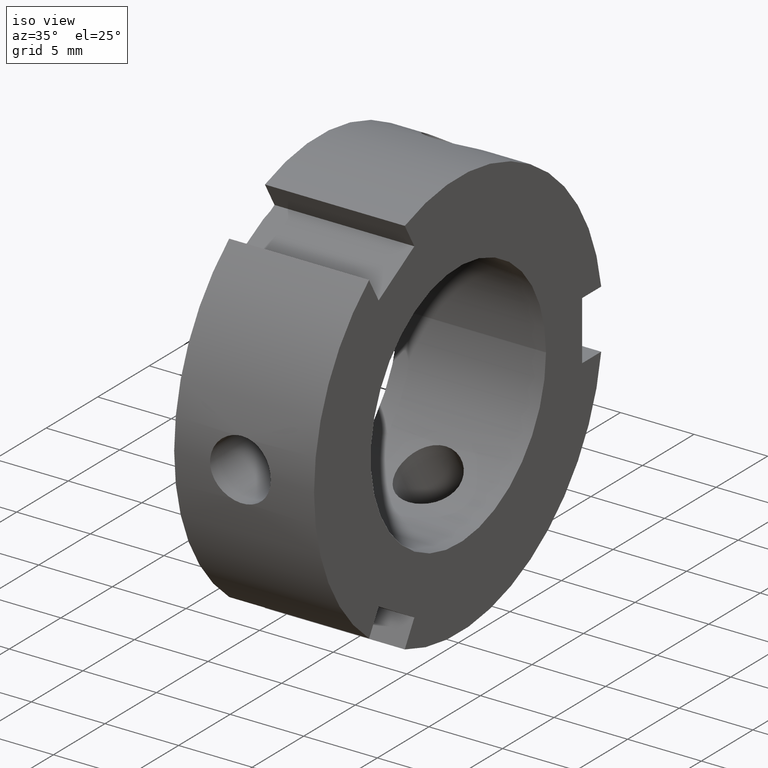
[diagram: clean part render]
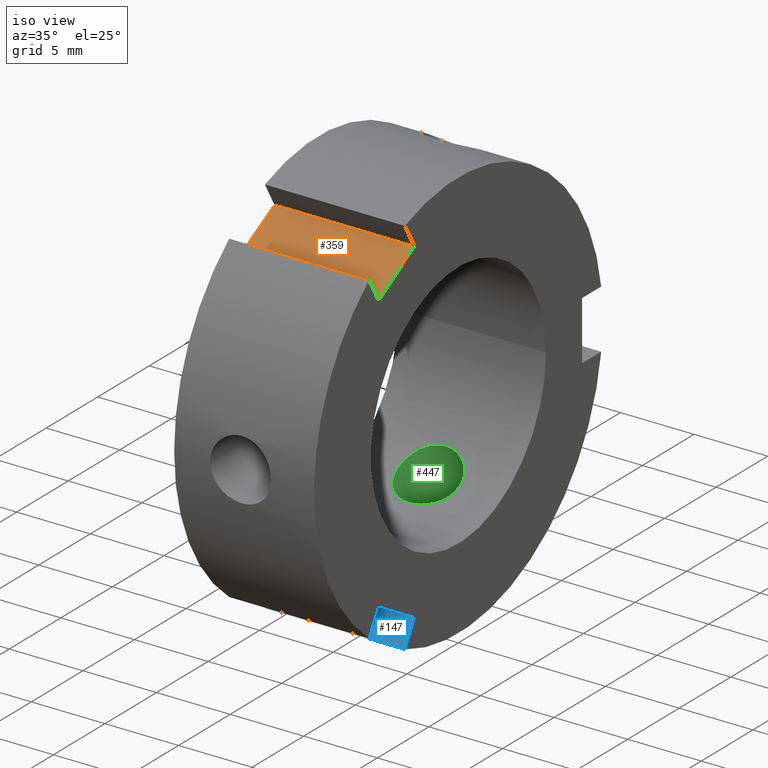
[diagram: same view with three faces highlighted in distinct colors, each labeled with its STEP entity id]
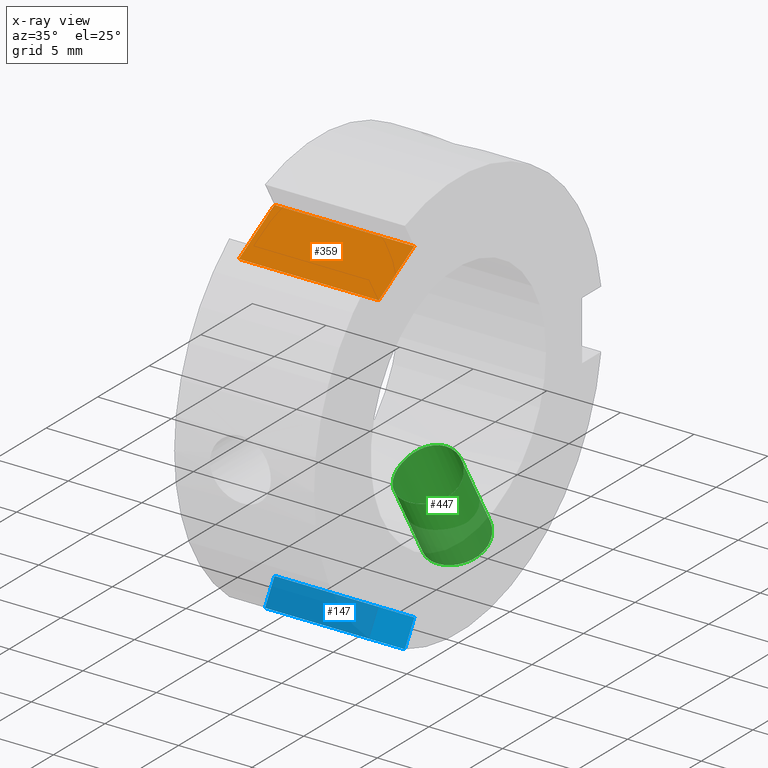
[diagram: x-ray of the same camera — body ghosted, the three highlighted faces saturated]
A machine part, iso view with three faces highlighted in distinct colors.
The next image is the same camera in x-ray (body ghosted, the three faces saturated) — at least one of them is partly hidden behind the body in this view.
Their STEP definitions:

[orange] entity #359 — the highlighted planar face has unit normal (0, 0.5, -0.866).
#263=CARTESIAN_POINT('',(0.499999999999997,-4.267949192431120,11.392304845413264));
#264=VERTEX_POINT('',#263);
#273=CARTESIAN_POINT('',(9.999999999999996,-4.267949192431120,11.392304845413264));
#274=VERTEX_POINT('',#273);
#275=CARTESIAN_POINT('',(9.999999999999996,-4.267949192431120,11.392304845413264));
#276=DIRECTION('',(-1.0,0.0,0.0));
#277=VECTOR('',#276,9.499999999999998);
#278=LINE('',#275,#277);
#279=EDGE_CURVE('',#274,#264,#278,.T.);
#305=CARTESIAN_POINT('',(0.499999999999997,-7.732050807568875,9.392304845413266));
#306=VERTEX_POINT('',#305);
#321=CARTESIAN_POINT('',(9.999999999999996,-7.732050807568875,9.392304845413266));
#322=VERTEX_POINT('',#321);
#329=CARTESIAN_POINT('',(9.999999999999996,-7.732050807568875,9.392304845413266));
#330=DIRECTION('',(-1.0,0.0,0.0));
#331=VECTOR('',#330,9.499999999999998);
#332=LINE('',#329,#331);
#333=EDGE_CURVE('',#322,#306,#332,.T.);
#338=CARTESIAN_POINT('',(9.999999999999996,-7.732050807568875,9.392304845413266));
#339=DIRECTION('',(0.0,0.500000000000000,-0.866025403784439));
#340=DIRECTION('',(0.0,0.866025403784439,0.500000000000000));
#341=AXIS2_PLACEMENT_3D('',#338,#339,#340);
#342=PLANE('',#341);
#343=CARTESIAN_POINT('',(0.499999999999998,-7.732050807568877,9.392304845413264));
#344=DIRECTION('',(0.0,0.866025403784439,0.500000000000000));
#345=VECTOR('',#344,4.000000000000001);
#346=LINE('',#343,#345);
#347=EDGE_CURVE('',#306,#264,#346,.T.);
#348=ORIENTED_EDGE('',*,*,#347,.F.);
#349=ORIENTED_EDGE('',*,*,#333,.F.);
#350=CARTESIAN_POINT('',(9.999999999999996,-4.267949192431121,11.392304845413264));
#351=DIRECTION('',(0.0,-0.866025403784439,-0.500000000000000));
#352=VECTOR('',#351,4.000000000000001);
#353=LINE('',#350,#352);
#354=EDGE_CURVE('',#274,#322,#353,.T.);
#355=ORIENTED_EDGE('',*,*,#354,.F.);
#356=ORIENTED_EDGE('',*,*,#279,.T.);
#357=EDGE_LOOP('',(#348,#349,#355,#356));
#358=FACE_OUTER_BOUND('',#357,.T.);
#359=ADVANCED_FACE('',(#358),#342,.F.);

[blue] entity #147 — the highlighted planar face has unit normal (0, 0.866, -0.5).
#108=CARTESIAN_POINT('',(9.999999999999996,-5.267949192431130,-13.124355652982139));
#109=DIRECTION('',(0.0,0.866025403784438,-0.500000000000001));
#110=DIRECTION('',(1.0,0.0,0.0));
#111=AXIS2_PLACEMENT_3D('',#108,#109,#110);
#112=PLANE('',#111);
#113=CARTESIAN_POINT('',(0.499999999999998,-5.196152422706638,-12.999999999999996));
#114=VERTEX_POINT('',#113);
#115=CARTESIAN_POINT('',(0.499999999999997,-4.267949192431128,-11.392304845413260));
#116=VERTEX_POINT('',#115);
#117=CARTESIAN_POINT('',(0.499999999999997,-5.196152422706641,-13.0));
#118=DIRECTION('',(0.0,0.500000000000001,0.866025403784438));
#119=VECTOR('',#118,1.856406460551019);
#120=LINE('',#117,#119);
#121=EDGE_CURVE('',#114,#116,#120,.T.);
#122=ORIENTED_EDGE('',*,*,#121,.F.);
#123=CARTESIAN_POINT('',(9.999999999999996,-5.196152422706638,-12.999999999999996));
#124=VERTEX_POINT('',#123);
#125=CARTESIAN_POINT('',(9.999999999999995,-5.196152422706637,-12.999999999999993));
#126=DIRECTION('',(-1.0,0.0,0.0));
#127=VECTOR('',#126,9.499999999999996);
#128=LINE('',#125,#127);
#129=EDGE_CURVE('',#124,#114,#128,.T.);
#130=ORIENTED_EDGE('',*,*,#129,.F.);
#131=CARTESIAN_POINT('',(9.999999999999996,-4.267949192431128,-11.392304845413260));
#132=VERTEX_POINT('',#131);
#133=CARTESIAN_POINT('',(9.999999999999996,-4.267949192431130,-11.392304845413264));
#134=DIRECTION('',(0.0,-0.500000000000001,-0.866025403784438));
#135=VECTOR('',#134,1.856406460551017);
#136=LINE('',#133,#135);
#137=EDGE_CURVE('',#132,#124,#136,.T.);
#138=ORIENTED_EDGE('',*,*,#137,.F.);
#139=CARTESIAN_POINT('',(9.999999999999996,-4.267949192431128,-11.392304845413260));
#140=DIRECTION('',(-1.0,0.0,0.0));
#141=VECTOR('',#140,9.499999999999998);
#142=LINE('',#139,#141);
#143=EDGE_CURVE('',#132,#116,#142,.T.);
#144=ORIENTED_EDGE('',*,*,#143,.T.);
#145=EDGE_LOOP('',(#122,#130,#138,#144));
#146=FACE_OUTER_BOUND('',#145,.T.);
#147=ADVANCED_FACE('',(#146),#112,.F.);

[green] entity #447 — the highlighted cylindrical surface (bore or boss wall) has radius 2.067 mm, axis along (0, -0.5, 0.866).
#360=CARTESIAN_POINT('',(4.999999999999996,20.371422268066034,-35.284338390730412));
#361=DIRECTION('',(0.0,-0.500000000000000,0.866025403784439));
#362=DIRECTION('',(-1.0,0.0,0.0));
#363=AXIS2_PLACEMENT_3D('',#360,#361,#362);
#364=CYLINDRICAL_SURFACE('',#363,2.067000000000000);
#365=CARTESIAN_POINT('',(4.999999999999996,5.133210675172421,-13.024981695353583));
#366=VERTEX_POINT('',#365);
#367=CARTESIAN_POINT('',(4.999999999999995,5.133210675172419,-13.024981695353583));
#368=CARTESIAN_POINT('',(5.259947840968654,5.133210675172419,-13.024981695353583));
#369=CARTESIAN_POINT('',(5.536958622246919,5.182306950133850,-13.005961810636492));
#370=CARTESIAN_POINT('',(6.046109738612248,5.379621062563246,-12.925595733302220));
#371=CARTESIAN_POINT('',(6.278283119933112,5.527605156830562,-12.863885602794419));
#372=CARTESIAN_POINT('',(6.644893315557710,5.864340966022405,-12.713908741793315));
#373=CARTESIAN_POINT('',(6.803908717315345,6.075635800473997,-12.615532778830609));
#374=CARTESIAN_POINT('',(7.014972502059488,6.530993836255111,-12.385924962716041));
#375=CARTESIAN_POINT('',(7.066999999999997,6.774882247867965,-12.254327447774930));
#376=CARTESIAN_POINT('',(7.066999999999995,7.225117752132024,-11.994383858189348));
#377=CARTESIAN_POINT('',(7.014972502059487,7.461028748952358,-11.848969055514537));
#378=CARTESIAN_POINT('',(6.803908717315345,7.887553968505593,-11.569421336767995));
#379=CARTESIAN_POINT('',(6.644893315557710,8.078397468778846,-11.435622623925838));
#380=CARTESIAN_POINT('',(6.278283119933112,8.376649144981572,-11.218989289302346));
#381=CARTESIAN_POINT('',(6.046109738612248,8.504083732805839,-11.121686369564721));
#382=CARTESIAN_POINT('',(5.536958622246919,8.672339853594522,-10.990990374342822));
#383=CARTESIAN_POINT('',(5.259947840968655,8.713359694417290,-10.957981695353585));
#384=CARTESIAN_POINT('',(4.740052159031335,8.713359694417290,-10.957981695353585));
#385=CARTESIAN_POINT('',(4.463041377753075,8.672339853594522,-10.990990374342822));
#386=CARTESIAN_POINT('',(3.953890261387745,8.504083732805839,-11.121686369564721));
#387=CARTESIAN_POINT('',(3.721716880066881,8.376649144981572,-11.218989289302346));
#388=CARTESIAN_POINT('',(3.355106684442283,8.078397468778846,-11.435622623925838));
#389=CARTESIAN_POINT('',(3.196091282684648,7.887553968505596,-11.569421336767995));
#390=CARTESIAN_POINT('',(2.985027497940504,7.461028748952360,-11.848969055514541));
#391=CARTESIAN_POINT('',(2.932999999999996,7.225117752132024,-11.994383858189348));
#392=CARTESIAN_POINT('',(2.932999999999995,6.774882247867965,-12.254327447774930));
#393=CARTESIAN_POINT('',(2.985027497940503,6.530993836255111,-12.385924962716041));
#394=CARTESIAN_POINT('',(3.196091282684645,6.075635800473997,-12.615532778830607));
#395=CARTESIAN_POINT('',(3.355106684442281,5.864340966022406,-12.713908741793315));
#396=CARTESIAN_POINT('',(3.721716880066879,5.527605156830562,-12.863885602794419));
#397=CARTESIAN_POINT('',(3.953890261387742,5.379621062563245,-12.925595733302222));
#398=CARTESIAN_POINT('',(4.463041377753071,5.182306950133848,-13.005961810636496));
#399=CARTESIAN_POINT('',(4.740052159031335,5.133210675172419,-13.024981695353583));
#400=CARTESIAN_POINT('',(4.999999999999996,5.133210675172419,-13.024981695353583));
#401=B_SPLINE_CURVE_WITH_KNOTS('',3,(#367,#368,#369,#370,#371,#372,#373,#374,#375,#376,#377,#378,#379,#380,#381,#382,#383,#384,#385,#386,#387,#388,#389,#390,#391,#392,#393,#394,#395,#396,#397,#398,#399,#400),.UNSPECIFIED.,.T.,.U.,(4,2,2,2,2,2,2,2,2,2,2,2,2,2,2,2,4),(0.0,0.077984352290598,0.155968704581196,0.233951781456871,0.311934858332545,0.389917935208220,0.467901012083894,0.545885364374492,0.623869716665090,0.701854068955688,0.779838421246286,0.857821498121961,0.935804574997635,1.013787651873310,1.091770728748984,1.169755081039582,1.247739433330180),.UNSPECIFIED.);
#402=EDGE_CURVE('',#366,#366,#401,.T.);
#403=ORIENTED_EDGE('',*,*,#402,.F.);
#404=EDGE_LOOP('',(#403));
#405=FACE_OUTER_BOUND('',#404,.T.);
#406=CARTESIAN_POINT('',(4.999999999999996,2.332349261655815,-8.173747422183633));
#407=VERTEX_POINT('',#406);
#408=CARTESIAN_POINT('',(4.999999999999995,2.332349261655812,-8.173747422183634));
#409=CARTESIAN_POINT('',(4.739317430306125,2.332349261655812,-8.173747422183634));
#410=CARTESIAN_POINT('',(4.462009880145300,2.384478032851765,-8.159412673284752));
#411=CARTESIAN_POINT('',(3.953075137963602,2.591781277072164,-8.095950850192581));
#412=CARTESIAN_POINT('',(3.721352480291034,2.746525006237643,-8.046184682494491));
#413=CARTESIAN_POINT('',(3.355490909488898,3.095301284294160,-7.918559774958878));
#414=CARTESIAN_POINT('',(3.196578016542416,3.312899900387664,-7.831987251533913));
#415=CARTESIAN_POINT('',(2.985304242775974,3.777508821945698,-7.618776617940599));
#416=CARTESIAN_POINT('',(2.932999999999995,4.024270437036776,-7.491540956108597));
#417=CARTESIAN_POINT('',(2.932999999999995,4.475729562963209,-7.230890908226860));
#418=CARTESIAN_POINT('',(2.985304242775972,4.709299685922588,-7.080806911795110));
#419=CARTESIAN_POINT('',(3.196578016542415,5.126249971750391,-6.785049099697618));
#420=CARTESIAN_POINT('',(3.355490909488899,5.310023284352884,-6.639889432044788));
#421=CARTESIAN_POINT('',(3.721352480291034,5.594937835462623,-6.401652768778265));
#422=CARTESIAN_POINT('',(3.953075137963602,5.715408465520909,-6.292523852093668));
#423=CARTESIAN_POINT('',(4.462009880145301,5.874019638599402,-6.144724887857958));
#424=CARTESIAN_POINT('',(4.739317430306126,5.912498280900680,-6.106747422183634));
#425=CARTESIAN_POINT('',(5.260682569693866,5.912498280900680,-6.106747422183634));
#426=CARTESIAN_POINT('',(5.537990119854689,5.874019638599402,-6.144724887857959));
#427=CARTESIAN_POINT('',(6.046924862036386,5.715408465520912,-6.292523852093667));
#428=CARTESIAN_POINT('',(6.278647519708956,5.594937835462623,-6.401652768778265));
#429=CARTESIAN_POINT('',(6.644509090511091,5.310023284352884,-6.639889432044788));
#430=CARTESIAN_POINT('',(6.803421983457576,5.126249971750391,-6.785049099697618));
#431=CARTESIAN_POINT('',(7.014695757224018,4.709299685922588,-7.080806911795110));
#432=CARTESIAN_POINT('',(7.066999999999996,4.475729562963209,-7.230890908226860));
#433=CARTESIAN_POINT('',(7.066999999999996,4.024270437036776,-7.491540956108597));
#434=CARTESIAN_POINT('',(7.014695757224017,3.777508821945698,-7.618776617940599));
#435=CARTESIAN_POINT('',(6.803421983457575,3.312899900387664,-7.831987251533913));
#436=CARTESIAN_POINT('',(6.644509090511093,3.095301284294160,-7.918559774958878));
#437=CARTESIAN_POINT('',(6.278647519708958,2.746525006237643,-8.046184682494491));
#438=CARTESIAN_POINT('',(6.046924862036388,2.591781277072164,-8.095950850192583));
#439=CARTESIAN_POINT('',(5.537990119854691,2.384478032851765,-8.159412673284752));
#440=CARTESIAN_POINT('',(5.260682569693866,2.332349261655812,-8.173747422183634));
#441=CARTESIAN_POINT('',(4.999999999999995,2.332349261655812,-8.173747422183634));
#442=B_SPLINE_CURVE_WITH_KNOTS('',3,(#408,#409,#410,#411,#412,#413,#414,#415,#416,#417,#418,#419,#420,#421,#422,#423,#424,#425,#426,#427,#428,#429,#430,#431,#432,#433,#434,#435,#436,#437,#438,#439,#440,#441),.UNSPECIFIED.,.T.,.U.,(4,2,2,2,2,2,2,2,2,2,2,2,2,2,2,2,4),(0.0,0.078204770908161,0.156409541816322,0.234604556180844,0.312799570545366,0.390994584909887,0.469189599274409,0.547394370182570,0.625599141090731,0.703803911998893,0.782008682907054,0.860203697271576,0.938398711636097,1.016593726000619,1.094788740365141,1.172993511273302,1.251198282181463),.UNSPECIFIED.);
#443=EDGE_CURVE('',#407,#407,#442,.T.);
#444=ORIENTED_EDGE('',*,*,#443,.F.);
#445=EDGE_LOOP('',(#444));
#446=FACE_BOUND('',#445,.T.);
#447=ADVANCED_FACE('',(#405,#446),#364,.F.);